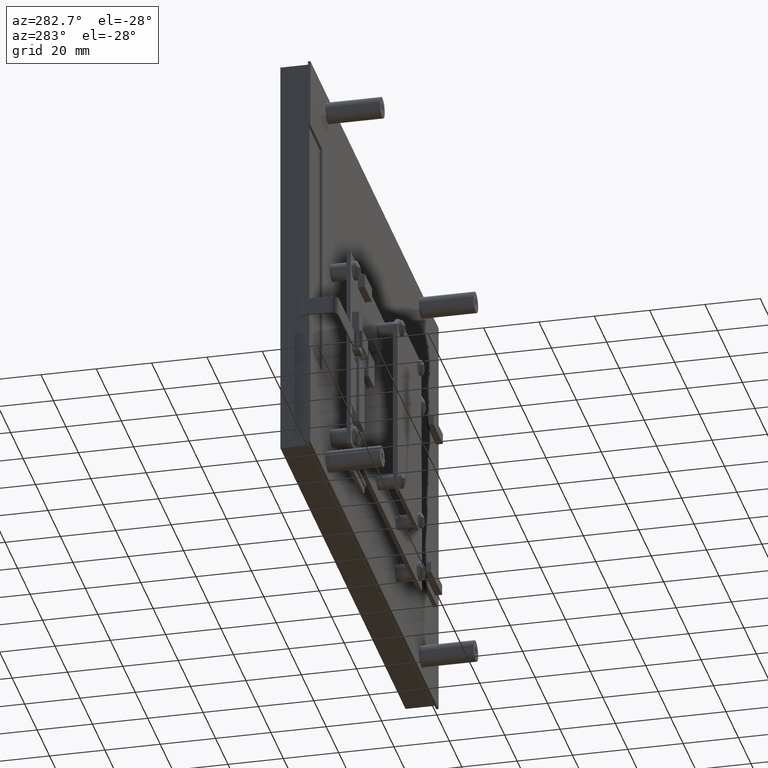
[diagram: clean part render]
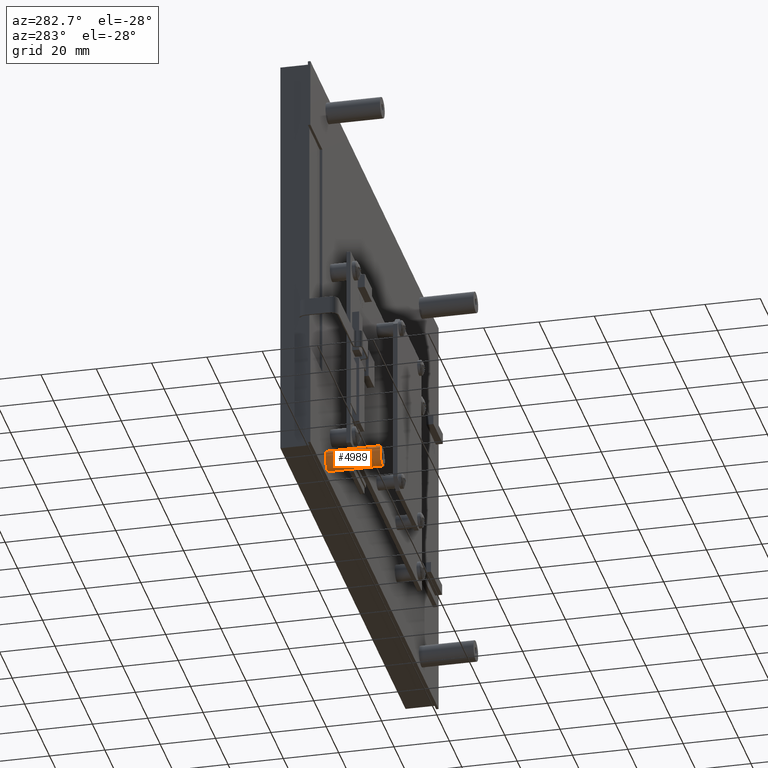
[diagram: same view with one face highlighted and labeled with its STEP entity id]
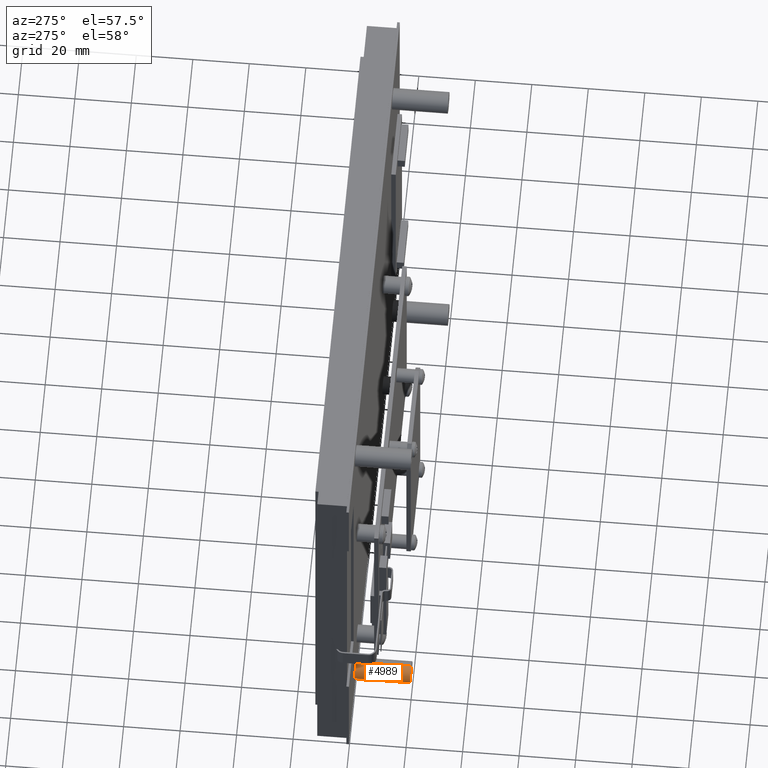
[diagram: same view with one face highlighted and labeled with its STEP entity id]
A machine part, auxiliary view. The second image highlights one B-rep face of the part: STEP entity #4989.
A second angle (auxiliary view) of the same face is appended — the face is thin or edge-on in the first view.
In plain terms, the highlighted cylindrical surface (edge-blend (fillet) strip) has radius 3.81 mm, axis along (0, 1, 0).
Its self-contained STEP definition (entity closure, byte-faithful):
#1995 = CARTESIAN_POINT ( 'NONE',  ( -2.950000000000003300, -0.7765000000000000800, -2.890500000000000300 ) ) ;
#2018 = CARTESIAN_POINT ( 'NONE',  ( -2.950000000000003300, 0.0000000000000000000, -2.890500000000000300 ) ) ;
#2021 = CARTESIAN_POINT ( 'NONE',  ( -2.950000000000003300, 0.0000000000000000000, -2.590500000000000500 ) ) ;
#2052 = CARTESIAN_POINT ( 'NONE',  ( -2.950000000000003300, -0.7765000000000000800, -2.590500000000000500 ) ) ;
#4778 = EDGE_CURVE ( 'NONE', #7353, #7322, #7785, .T. ) ;
#4816 = EDGE_CURVE ( 'NONE', #7322, #7319, #7847, .T. ) ;
#4845 = EDGE_CURVE ( 'NONE', #7353, #7296, #7892, .T. ) ;
#4989 = ADVANCED_FACE ( 'NONE', ( #8854 ), #8865, .T. ) ;
#5820 = EDGE_CURVE ( 'NONE', #7296, #7319, #9425, .T. ) ;
#6702 = ORIENTED_EDGE ( 'NONE', *, *, #5820, .F. ) ;
#6703 = ORIENTED_EDGE ( 'NONE', *, *, #4845, .F. ) ;
#6704 = ORIENTED_EDGE ( 'NONE', *, *, #4778, .T. ) ;
#6705 = ORIENTED_EDGE ( 'NONE', *, *, #4816, .T. ) ;
#7296 = VERTEX_POINT ( 'NONE', #1995 ) ;
#7319 = VERTEX_POINT ( 'NONE', #2018 ) ;
#7322 = VERTEX_POINT ( 'NONE', #2021 ) ;
#7353 = VERTEX_POINT ( 'NONE', #2052 ) ;
#7785 = LINE ( 'NONE', #12175, #7786 ) ;
#7786 = VECTOR ( 'NONE', #12176, 39.37007874015748100 ) ;
#7847 = CIRCLE ( 'NONE', #8147, 0.1499999999999997700 ) ;
#7892 = CIRCLE ( 'NONE', #8160, 0.1499999999999997700 ) ;
#8147 = AXIS2_PLACEMENT_3D ( 'NONE', #12266, #12267, #12268 ) ;
#8160 = AXIS2_PLACEMENT_3D ( 'NONE', #12335, #12336, #12337 ) ;
#8270 = AXIS2_PLACEMENT_3D ( 'NONE', #10016, #10015, #10012 ) ;
#8854 = FACE_OUTER_BOUND ( 'NONE', #14448, .T. ) ;
#8865 = CYLINDRICAL_SURFACE ( 'NONE', #8270, 0.1499999999999997700 ) ;
#9425 = LINE ( 'NONE', #20399, #9427 ) ;
#9427 = VECTOR ( 'NONE', #20400, 39.37007874015748100 ) ;
#10012 = DIRECTION ( 'NONE',  ( 0.0000000000000000000, 0.0000000000000000000, 1.000000000000000000 ) ) ;
#10015 = DIRECTION ( 'NONE',  ( -0.0000000000000000000, 1.000000000000000000, -0.0000000000000000000 ) ) ;
#10016 = CARTESIAN_POINT ( 'NONE',  ( -2.950000000000003300, -0.7765000000000000800, -2.740500000000000400 ) ) ;
#12175 = CARTESIAN_POINT ( 'NONE',  ( -2.950000000000003300, -0.7765000000000000800, -2.590500000000000500 ) ) ;
#12176 = DIRECTION ( 'NONE',  ( -0.0000000000000000000, 1.000000000000000000, -0.0000000000000000000 ) ) ;
#12266 = CARTESIAN_POINT ( 'NONE',  ( -2.950000000000003300, 0.0000000000000000000, -2.740500000000000400 ) ) ;
#12267 = DIRECTION ( 'NONE',  ( -0.0000000000000000000, -1.000000000000000000, -0.0000000000000000000 ) ) ;
#12268 = DIRECTION ( 'NONE',  ( 0.0000000000000000000, 0.0000000000000000000, 1.000000000000000000 ) ) ;
#12335 = CARTESIAN_POINT ( 'NONE',  ( -2.950000000000003300, -0.7765000000000000800, -2.740500000000000400 ) ) ;
#12336 = DIRECTION ( 'NONE',  ( 0.0000000000000000000, -1.000000000000000000, 0.0000000000000000000 ) ) ;
#12337 = DIRECTION ( 'NONE',  ( 0.0000000000000000000, 0.0000000000000000000, -1.000000000000000000 ) ) ;
#14448 = EDGE_LOOP ( 'NONE', ( #6702, #6703, #6704, #6705 ) ) ;
#20399 = CARTESIAN_POINT ( 'NONE',  ( -2.950000000000003300, -0.7765000000000000800, -2.890500000000000300 ) ) ;
#20400 = DIRECTION ( 'NONE',  ( -0.0000000000000000000, 1.000000000000000000, -0.0000000000000000000 ) ) ;